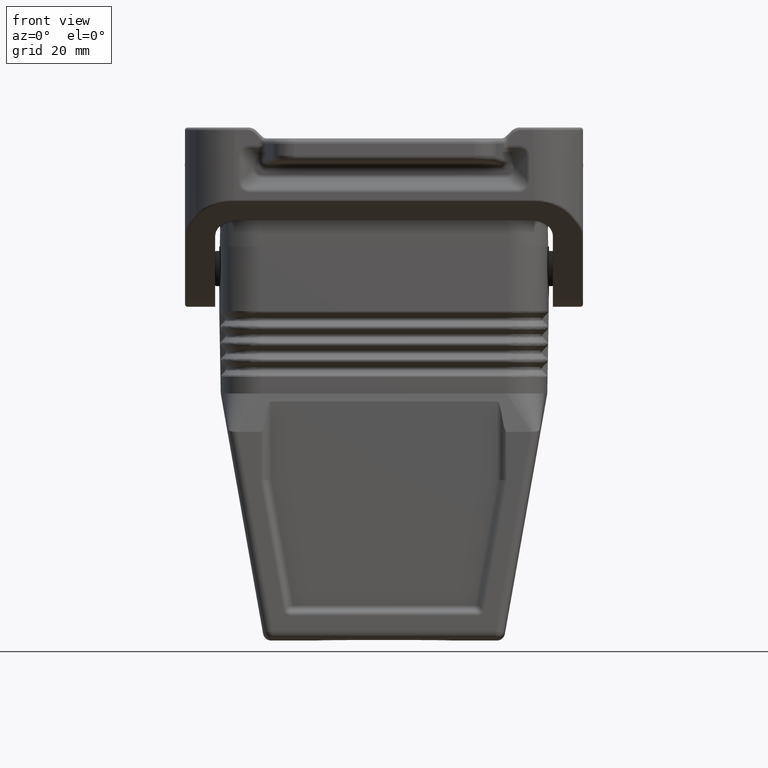
[diagram: clean part render]
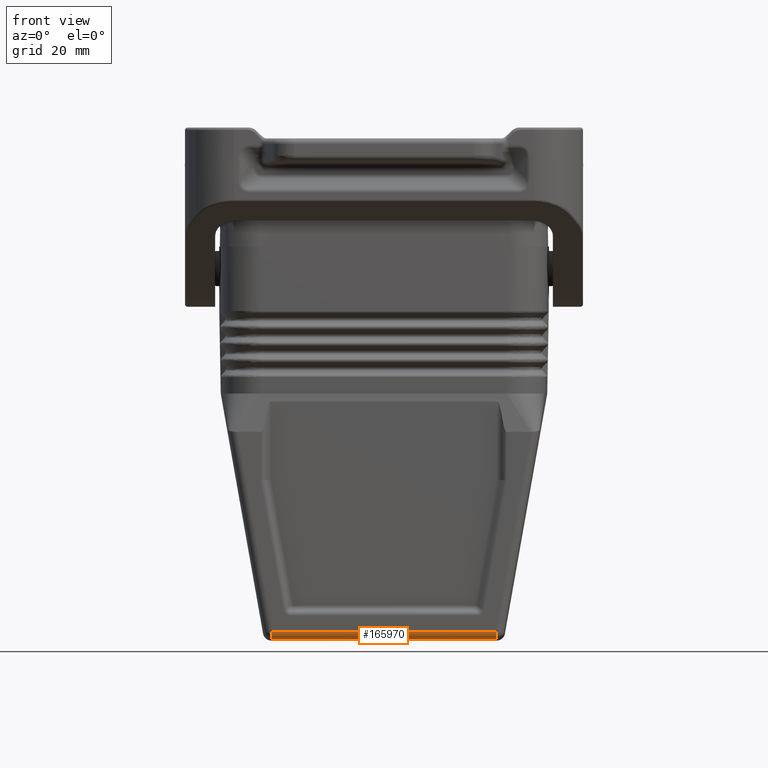
[diagram: same view with one face highlighted and labeled with its STEP entity id]
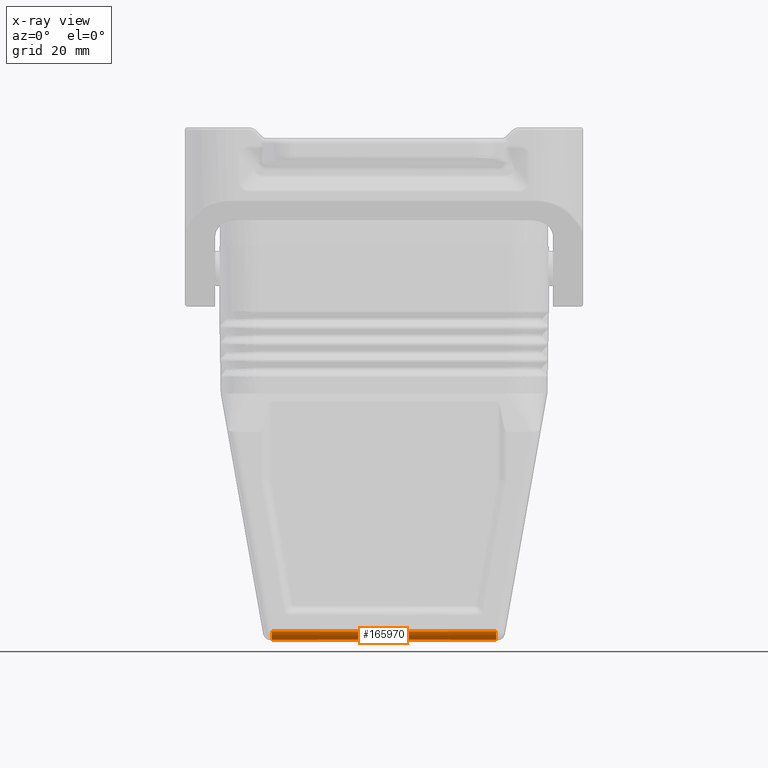
[diagram: x-ray of the same camera — body ghosted, the highlighted face saturated]
A machine part, front view. The second image highlights one B-rep face of the part: STEP entity #165970.
The next image is the same camera in x-ray: the body ghosted, the highlighted face saturated — about 0% of this face is hidden behind the body in this view.
In plain terms, the highlighted cylindrical surface (edge-blend (fillet) strip) has radius 1.5 mm, axis along (-1, 0, 0).
Its self-contained STEP definition (entity closure, byte-faithful):
#76210=CARTESIAN_POINT('',(70.3871677800653,70.700985577655,
71.8166215434117));
#76220=VERTEX_POINT('',#76210);
#76250=CARTESIAN_POINT('',(70.3871677800653,0.,71.8166215434117));
#76260=DIRECTION('',(0.,1.,0.));
#76270=VECTOR('',#76260,1.);
#76280=LINE('',#76250,#76270);
#76290=CARTESIAN_POINT('',(70.3871677800653,29.919014422345,
71.8166215434117));
#76300=VERTEX_POINT('',#76290);
#76310=EDGE_CURVE('',#76300,#76220,#76280,.T.);
#165510=CARTESIAN_POINT('',(71.8740779768177,70.700985577655,
70.3166786588155));
#165520=VERTEX_POINT('',#165510);
#165550=CARTESIAN_POINT('',(70.3740779768177,70.700985577655,
70.3166786588155));
#165560=DIRECTION('',(0.,1.,0.));
#165570=DIRECTION('',(1.,0.,0.));
#165580=AXIS2_PLACEMENT_3D('',#165550,#165560,#165570);
#165590=CIRCLE('',#165580,1.5);
#165600=EDGE_CURVE('',#76220,#165520,#165590,.T.);
#165730=CARTESIAN_POINT('',(70.3740779768177,0.,70.3166786588155));
#165740=DIRECTION('',(0.,1.,0.));
#165750=DIRECTION('',(1.,0.,0.));
#165760=AXIS2_PLACEMENT_3D('',#165730,#165740,#165750);
#165770=CYLINDRICAL_SURFACE('',#165760,1.5);
#165780=CARTESIAN_POINT('',(70.3740779768177,29.919014422345,
70.3166786588155));
#165790=DIRECTION('',(4.09837892165604E-31,1.,-3.46944695195361E-16));
#165800=DIRECTION('',(1.,-4.09837892165604E-31,0.));
#165810=AXIS2_PLACEMENT_3D('',#165780,#165790,#165800);
#165820=CIRCLE('',#165810,1.5);
#165830=CARTESIAN_POINT('',(71.8740779768177,29.919014422345,
70.3166786588155));
#165840=VERTEX_POINT('',#165830);
#165850=EDGE_CURVE('',#76300,#165840,#165820,.T.);
#165860=ORIENTED_EDGE('',*,*,#165850,.T.);
#165870=ORIENTED_EDGE('',*,*,#76310,.F.);
#165880=ORIENTED_EDGE('',*,*,#165600,.F.);
#165890=CARTESIAN_POINT('',(71.8740779768177,0.,70.3166786588155));
#165900=DIRECTION('',(0.,1.,0.));
#165910=VECTOR('',#165900,1.);
#165920=LINE('',#165890,#165910);
#165930=EDGE_CURVE('',#165840,#165520,#165920,.T.);
#165940=ORIENTED_EDGE('',*,*,#165930,.T.);
#165950=EDGE_LOOP('',(#165940,#165880,#165870,#165860));
#165960=FACE_OUTER_BOUND('',#165950,.T.);
#165970=ADVANCED_FACE('',(#165960),#165770,.T.);